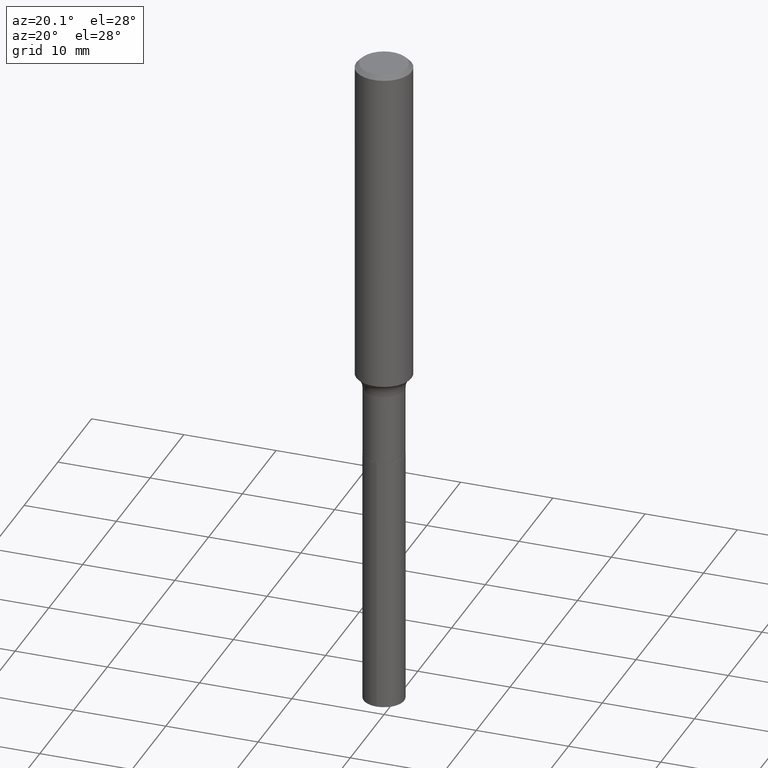
[diagram: clean part render]
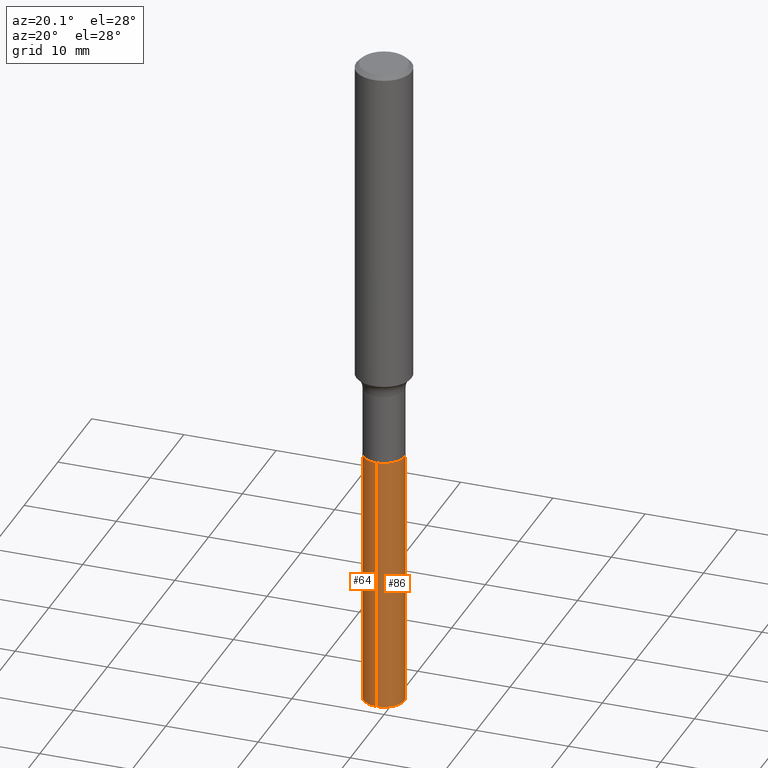
[diagram: same view with one multi-face feature highlighted, each face labeled with its STEP entity id]
A machine part, auxiliary view. The highlighted faces form ONE feature: a constant-radius fillet chain: 2 tangent blend faces with common blend radius 2.1996 mm. The faces share edges in the B-rep.
Their STEP definitions:
[1] entity #86 (Cylinder):
#27 = AXIS2_PLACEMENT_3D ( 'NONE', #144, #245, #105 ) ;
#36 = AXIS2_PLACEMENT_3D ( 'NONE', #87, #159, #298 ) ;
#65 = CARTESIAN_POINT ( 'NONE',  ( 6.153300091683171414E-16, 0.08659999999998996278, -2.878011328842676075 ) ) ;
#86 = ADVANCED_FACE ( 'NONE', ( #316 ), #93, .T. ) ;
#87 = CARTESIAN_POINT ( 'NONE',  ( 4.331658896395732410E-29, -6.184460895492863090E-15, -1.771299999999999653 ) ) ;
#93 = CYLINDRICAL_SURFACE ( 'NONE', #221, 0.08659999999999998255 ) ;
#105 = DIRECTION ( 'NONE',  ( -6.982962677686265922E-15, -1.000000000000000000, 6.309117768277745325E-15 ) ) ;
#122 = CARTESIAN_POINT ( 'NONE',  ( -6.047245678875604199E-16, -0.08660000000001008558, -2.878011328842675187 ) ) ;
#142 = DIRECTION ( 'NONE',  ( -2.445428197971062615E-29, 3.491539492116975712E-15, 1.000000000000000000 ) ) ;
#144 = CARTESIAN_POINT ( 'NONE',  ( 7.038041986961636871E-29, -1.004858720652032268E-14, -2.878011328842675631 ) ) ;
#159 = DIRECTION ( 'NONE',  ( -2.445428197971062335E-29, 3.491539492116975712E-15, 1.000000000000000000 ) ) ;
#178 = LINE ( 'NONE', #284, #458 ) ;
#183 = DIRECTION ( 'NONE',  ( -2.445428197971062615E-29, 3.491539492116975712E-15, 1.000000000000000000 ) ) ;
#184 = EDGE_LOOP ( 'NONE', ( #194, #213, #248, #218 ) ) ;
#186 = EDGE_CURVE ( 'NONE', #303, #424, #415, .T. ) ;
#194 = ORIENTED_EDGE ( 'NONE', *, *, #359, .T. ) ;
#213 = ORIENTED_EDGE ( 'NONE', *, *, #186, .T. ) ;
#218 = ORIENTED_EDGE ( 'NONE', *, *, #322, .F. ) ;
#221 = AXIS2_PLACEMENT_3D ( 'NONE', #476, #354, #312 ) ;
#242 = CIRCLE ( 'NONE', #36, 0.08659999999999998255 ) ;
#245 = DIRECTION ( 'NONE',  ( -2.445428197971062335E-29, 3.491539492116975712E-15, 1.000000000000000000 ) ) ;
#248 = ORIENTED_EDGE ( 'NONE', *, *, #492, .F. ) ;
#270 = CIRCLE ( 'NONE', #27, 0.08659999999999998255 ) ;
#284 = CARTESIAN_POINT ( 'NONE',  ( -6.047245678875872412E-16, -0.08660000000000617204, -1.771299999999999430 ) ) ;
#298 = DIRECTION ( 'NONE',  ( -6.982962677686265922E-15, -1.000000000000000000, 3.154558884138872662E-15 ) ) ;
#303 = VERTEX_POINT ( 'NONE', #65 ) ;
#312 = DIRECTION ( 'NONE',  ( -6.982962677686265922E-15, -1.000000000000000000, 3.154558884138872662E-15 ) ) ;
#316 = FACE_OUTER_BOUND ( 'NONE', #184, .T. ) ;
#322 = EDGE_CURVE ( 'NONE', #379, #416, #178, .T. ) ;
#354 = DIRECTION ( 'NONE',  ( -2.445428197971062335E-29, 3.491539492116975712E-15, 1.000000000000000000 ) ) ;
#359 = EDGE_CURVE ( 'NONE', #379, #303, #270, .T. ) ;
#372 = CARTESIAN_POINT ( 'NONE',  ( 6.153300091682898271E-16, 0.08659999999999380693, -1.771300000000000097 ) ) ;
#378 = CARTESIAN_POINT ( 'NONE',  ( -6.047245678875872412E-16, -0.08660000000000617204, -1.771299999999999430 ) ) ;
#379 = VERTEX_POINT ( 'NONE', #122 ) ;
#415 = LINE ( 'NONE', #372, #488 ) ;
#416 = VERTEX_POINT ( 'NONE', #378 ) ;
#424 = VERTEX_POINT ( 'NONE', #473 ) ;
#458 = VECTOR ( 'NONE', #142, 39.37007874015748143 ) ;
#473 = CARTESIAN_POINT ( 'NONE',  ( 6.153300091683170428E-16, 0.08659999999999380693, -1.771300000000000097 ) ) ;
#476 = CARTESIAN_POINT ( 'NONE',  ( 4.331658896395732410E-29, -6.184460895492863090E-15, -1.771299999999999653 ) ) ;
#488 = VECTOR ( 'NONE', #183, 39.37007874015748143 ) ;
#492 = EDGE_CURVE ( 'NONE', #416, #424, #242, .T. ) ;
[2] entity #64 (Cylinder):
#14 = CARTESIAN_POINT ( 'NONE',  ( 4.331658896395732410E-29, -6.184460895492863090E-15, -1.771299999999999653 ) ) ;
#21 = CIRCLE ( 'NONE', #252, 0.08659999999999998255 ) ;
#37 = DIRECTION ( 'NONE',  ( -6.982962677686265922E-15, -1.000000000000000000, 3.154558884138872662E-15 ) ) ;
#60 = CARTESIAN_POINT ( 'NONE',  ( 7.038041986961636871E-29, -1.004858720652032268E-14, -2.878011328842675631 ) ) ;
#64 = ADVANCED_FACE ( 'NONE', ( #311 ), #438, .T. ) ;
#65 = CARTESIAN_POINT ( 'NONE',  ( 6.153300091683171414E-16, 0.08659999999998996278, -2.878011328842676075 ) ) ;
#92 = DIRECTION ( 'NONE',  ( -6.982962677686265922E-15, -1.000000000000000000, 3.154558884138872662E-15 ) ) ;
#99 = DIRECTION ( 'NONE',  ( -2.445428197971062335E-29, 3.491539492116975712E-15, 1.000000000000000000 ) ) ;
#104 = ORIENTED_EDGE ( 'NONE', *, *, #322, .T. ) ;
#122 = CARTESIAN_POINT ( 'NONE',  ( -6.047245678875604199E-16, -0.08660000000001008558, -2.878011328842675187 ) ) ;
#142 = DIRECTION ( 'NONE',  ( -2.445428197971062615E-29, 3.491539492116975712E-15, 1.000000000000000000 ) ) ;
#148 = ORIENTED_EDGE ( 'NONE', *, *, #186, .F. ) ;
#173 = EDGE_CURVE ( 'NONE', #424, #416, #21, .T. ) ;
#178 = LINE ( 'NONE', #284, #458 ) ;
#183 = DIRECTION ( 'NONE',  ( -2.445428197971062615E-29, 3.491539492116975712E-15, 1.000000000000000000 ) ) ;
#186 = EDGE_CURVE ( 'NONE', #303, #424, #415, .T. ) ;
#207 = DIRECTION ( 'NONE',  ( -2.445428197971062335E-29, 3.491539492116975712E-15, 1.000000000000000000 ) ) ;
#236 = DIRECTION ( 'NONE',  ( -6.982962677686265922E-15, -1.000000000000000000, 6.309117768277745325E-15 ) ) ;
#252 = AXIS2_PLACEMENT_3D ( 'NONE', #419, #329, #37 ) ;
#284 = CARTESIAN_POINT ( 'NONE',  ( -6.047245678875872412E-16, -0.08660000000000617204, -1.771299999999999430 ) ) ;
#302 = EDGE_CURVE ( 'NONE', #303, #379, #484, .T. ) ;
#303 = VERTEX_POINT ( 'NONE', #65 ) ;
#311 = FACE_OUTER_BOUND ( 'NONE', #406, .T. ) ;
#322 = EDGE_CURVE ( 'NONE', #379, #416, #178, .T. ) ;
#329 = DIRECTION ( 'NONE',  ( -2.445428197971062335E-29, 3.491539492116975712E-15, 1.000000000000000000 ) ) ;
#334 = AXIS2_PLACEMENT_3D ( 'NONE', #14, #99, #92 ) ;
#341 = ORIENTED_EDGE ( 'NONE', *, *, #302, .T. ) ;
#344 = ORIENTED_EDGE ( 'NONE', *, *, #173, .F. ) ;
#362 = AXIS2_PLACEMENT_3D ( 'NONE', #60, #207, #236 ) ;
#372 = CARTESIAN_POINT ( 'NONE',  ( 6.153300091682898271E-16, 0.08659999999999380693, -1.771300000000000097 ) ) ;
#378 = CARTESIAN_POINT ( 'NONE',  ( -6.047245678875872412E-16, -0.08660000000000617204, -1.771299999999999430 ) ) ;
#379 = VERTEX_POINT ( 'NONE', #122 ) ;
#406 = EDGE_LOOP ( 'NONE', ( #148, #341, #104, #344 ) ) ;
#415 = LINE ( 'NONE', #372, #488 ) ;
#416 = VERTEX_POINT ( 'NONE', #378 ) ;
#419 = CARTESIAN_POINT ( 'NONE',  ( 4.331658896395732410E-29, -6.184460895492863090E-15, -1.771299999999999653 ) ) ;
#424 = VERTEX_POINT ( 'NONE', #473 ) ;
#438 = CYLINDRICAL_SURFACE ( 'NONE', #334, 0.08659999999999998255 ) ;
#458 = VECTOR ( 'NONE', #142, 39.37007874015748143 ) ;
#473 = CARTESIAN_POINT ( 'NONE',  ( 6.153300091683170428E-16, 0.08659999999999380693, -1.771300000000000097 ) ) ;
#484 = CIRCLE ( 'NONE', #362, 0.08659999999999998255 ) ;
#488 = VECTOR ( 'NONE', #183, 39.37007874015748143 ) ;